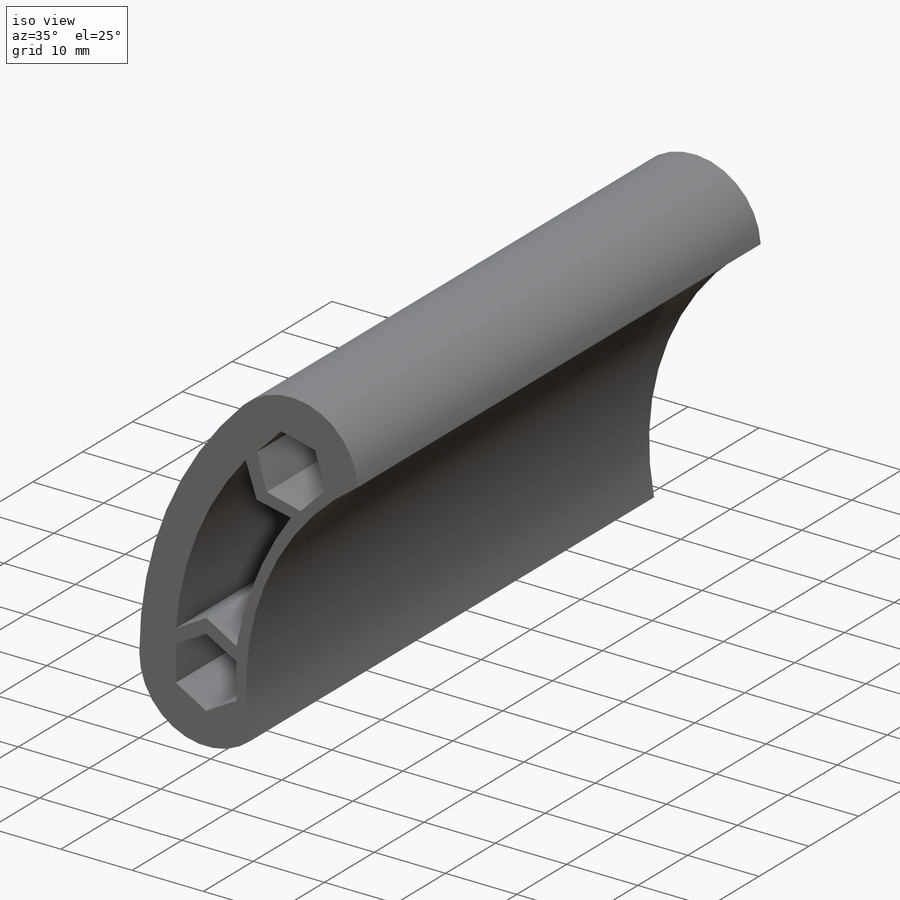
[diagram: iso view]
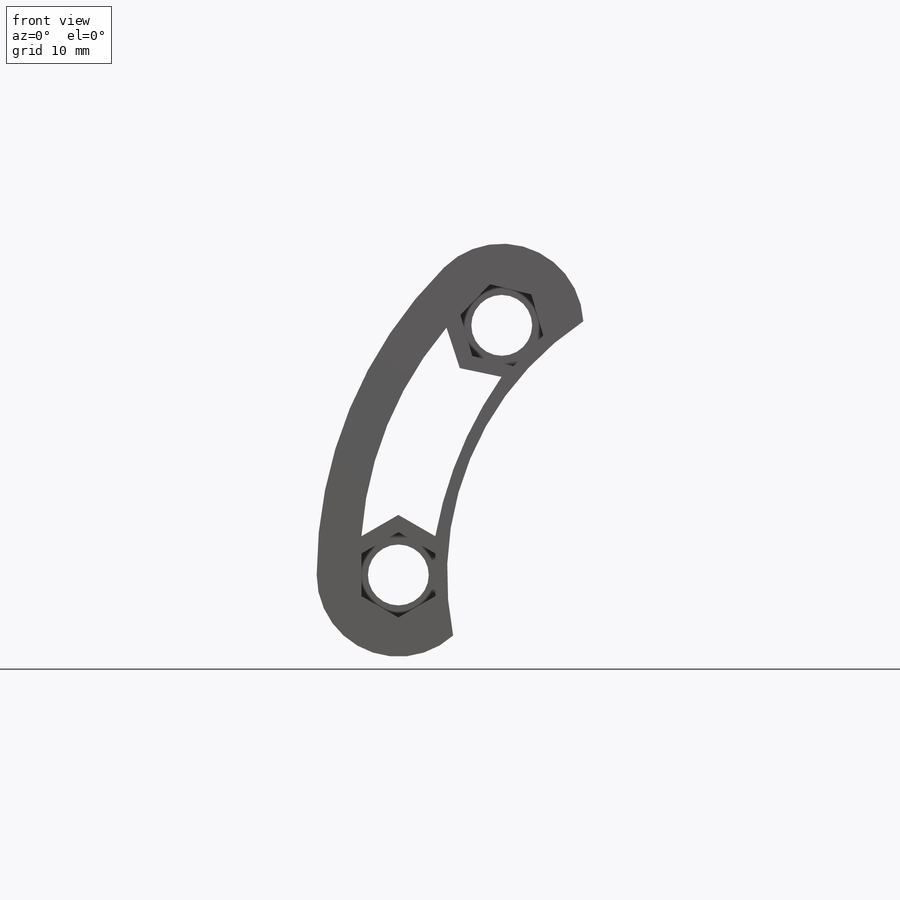
[diagram: front view]
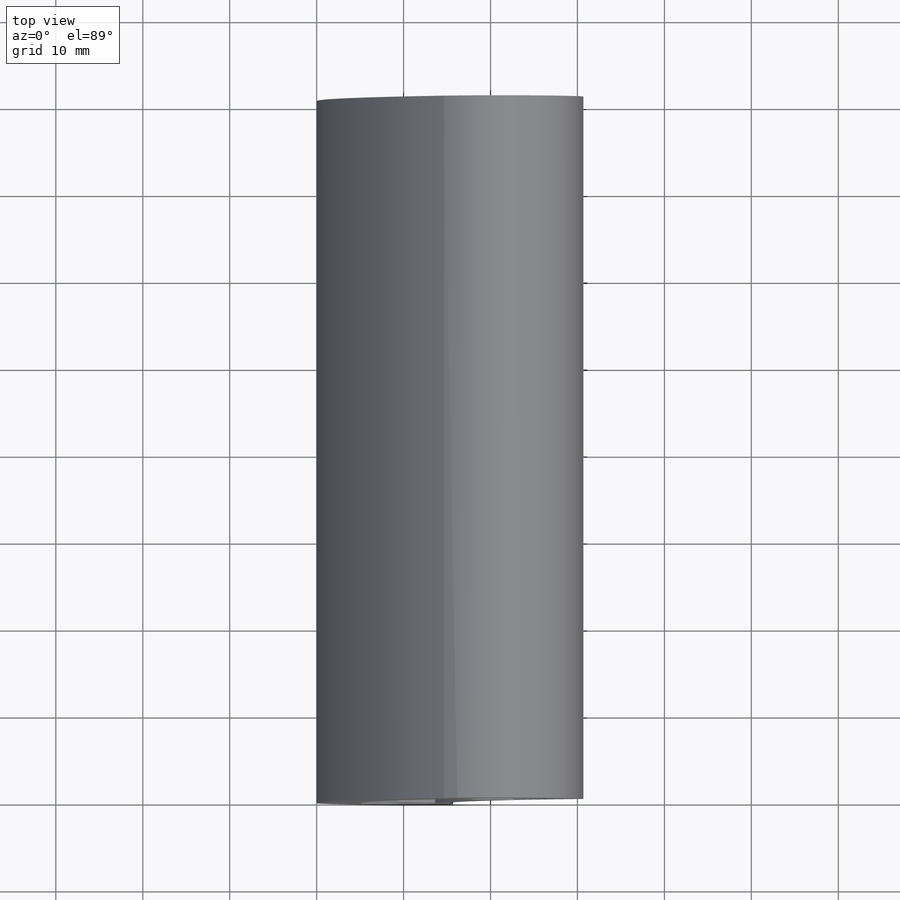
[diagram: top view]
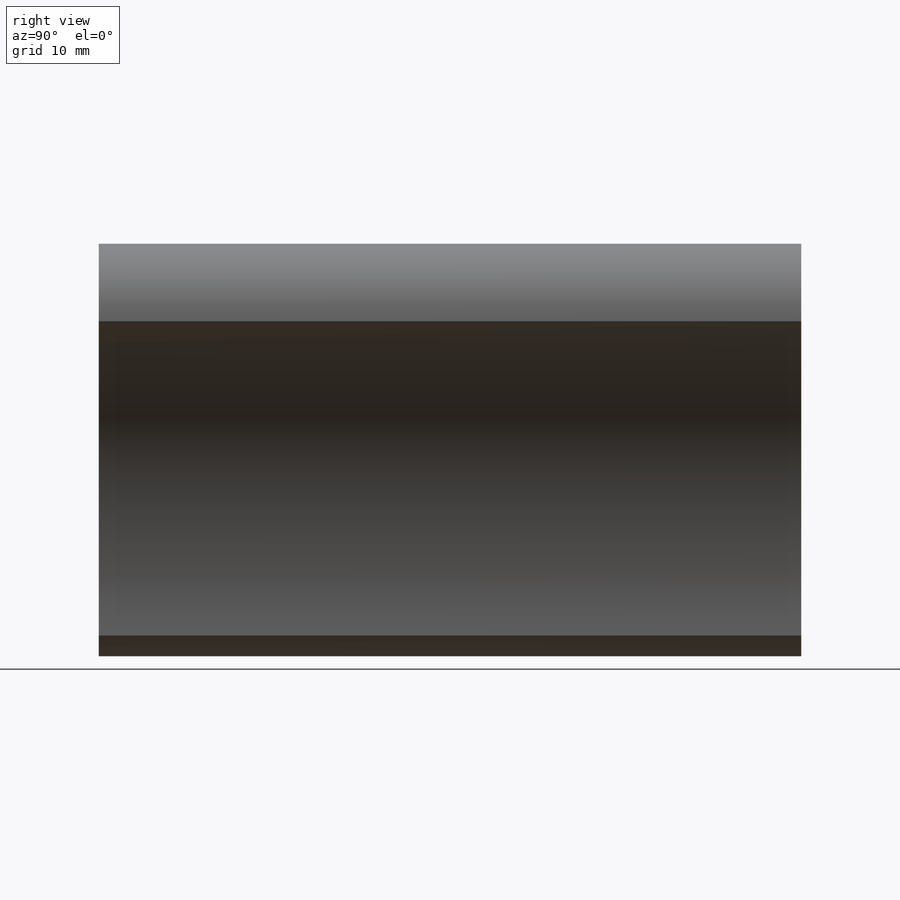
[diagram: right view]
SOLIDWORKS PART (.sldprt)
format: sldprt  version: not decoded by parser v0  size: 295,936 bytes
history: native  units: mm
features: sketch x7, cut_extrude x5, plane x3, extrude x2, material x1 (+9 scaffold rows collapsed)
feature tree (27):
  scaffold x9  (default folders/planes/origin — collapsed)
  material  "Material <sin especificar>"
  plane  "Alzado"
  plane  "Planta"
  plane  "Vista lateral"
  sketch  "Croquis1"  dims[D1=100.0mm D2=38.0mm]
  extrude  "Saliente-Extruir1"  Depth=5mm
  sketch  "Croquis4"  dims[D1=41.5mm D2=60.0mm]
  cut_extrude  "Cortar-Extruir1"  Depth=2mm
  sketch  "Croquis5"  dims[D2=5.5mm D1=8.0]
  cut_extrude  "Cortar-Extruir2"  [1 undecoded]
  sketch  "Croquis8"  dims[c1.D1=65.0mm c1.D2=70.0mm c2.D1=7.0mm c2.D3=7.0mm]
  extrude  "Saliente-Extruir2"  Depth=80.8mm
  sketch  "Croquis9"  dims[D1=8.5mm D2=8.5mm]
  cut_extrude  "Cortar-Extruir3"  Depth=11mm
  sketch  "Croquis10"  dims[D1=8.5mm D2=8.5mm]
  cut_extrude  "Cortar-Extruir4"  Depth=19mm
  sketch  "Croquis13"  dims[D2=8.5mm D3=2.0mm D4=2.0mm D5=8.5mm D1=0.0mm]
  cut_extrude  "Cortar-Extruir5"  [1 undecoded]
decode coverage: 12 of 14 modeling features carry decoded parameters
note: 2 parameter values undecoded
note: suppression state not decoded; provenance and decode notes live in map.json
